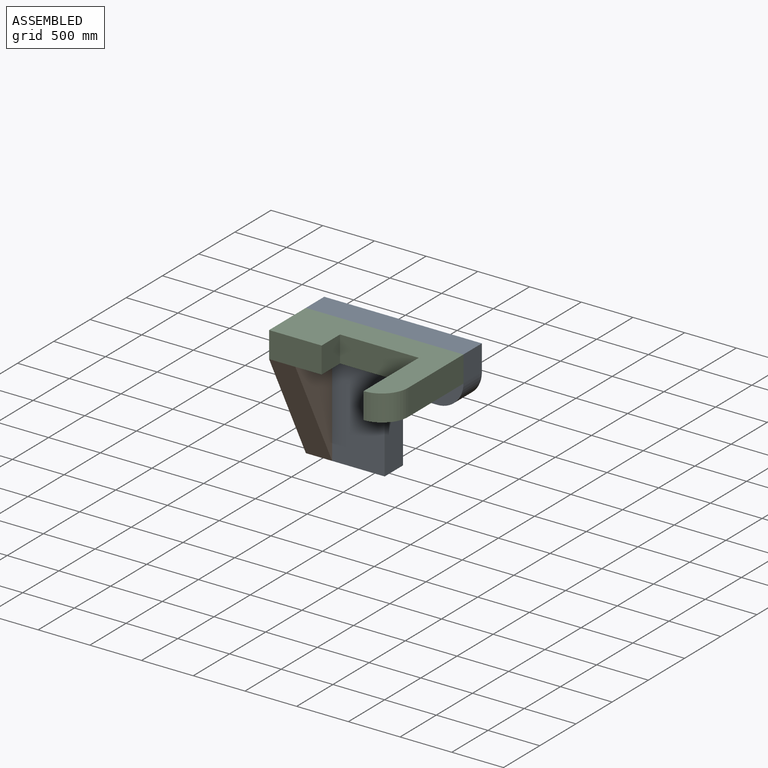
[diagram: assembled view]
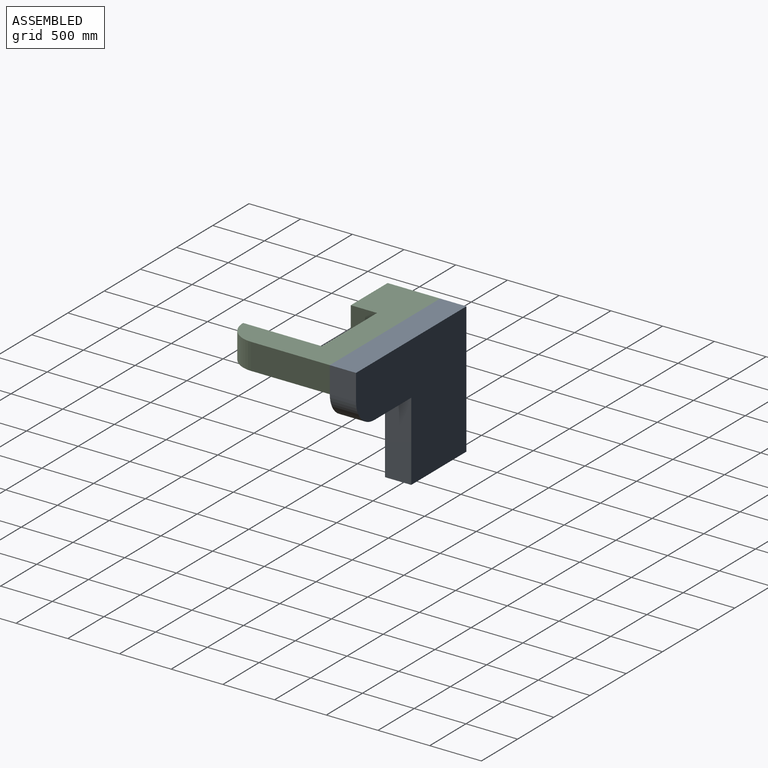
[diagram: assembled view, second angle]
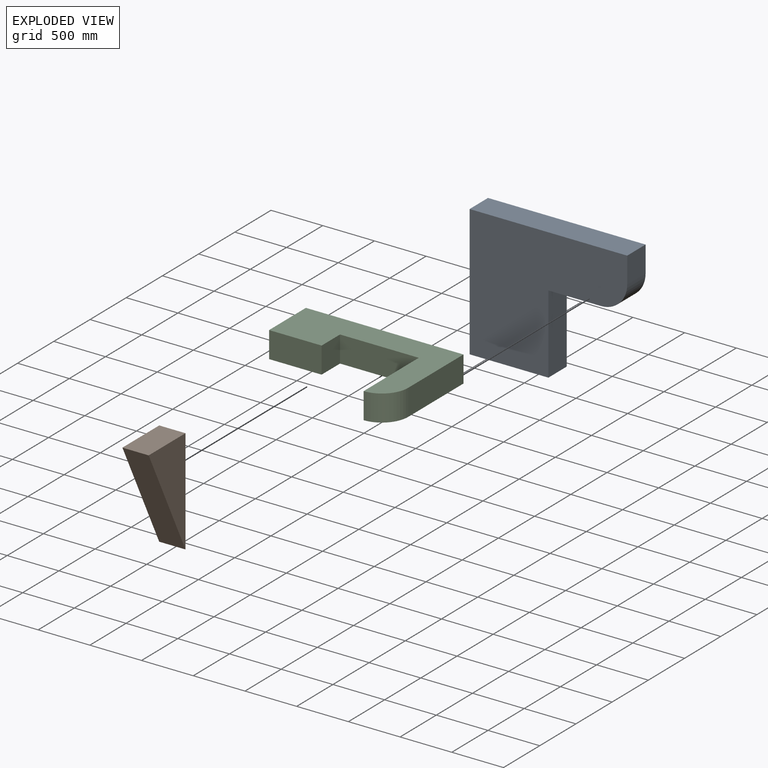
[diagram: exploded view]
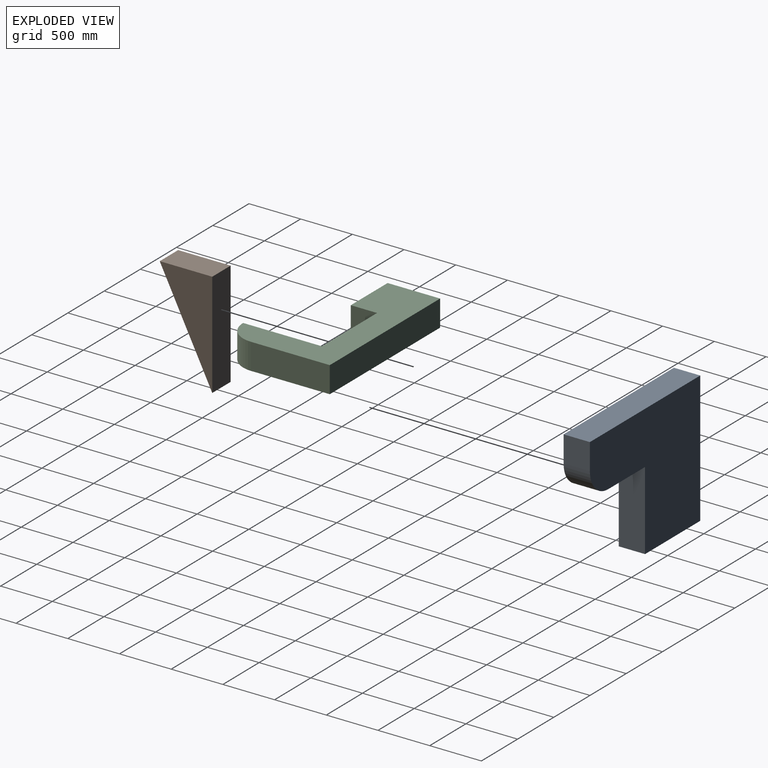
[diagram: exploded view, second angle]
ASSEMBLY  parts=3 mates=4
PART A: 9 faces, bbox 1524x254x1270 mm
  f0: plane 1270x254mm, normal (-1,0,0), area 322580mm2, adj f1,f5,f6,f7
  f1: plane 762x254mm, normal (0,0,-1), area 193548mm2, adj f0,f2,f6,f7
  f2: plane 762x254mm, normal (1,0,0), area 193548mm2, adj f1,f3,f6,f7
  f3: plane 508x254mm, normal (0,0,-1), area 129032mm2, adj f2,f6,f7,f8
  f4: plane 254x254mm, normal (1,0,0), area 64516mm2, adj f5,f6,f7,f8
  f5: plane 1524x254mm, normal (0,0,1), area 387096mm2, adj f0,f4,f6,f7
  f6: plane 1524x1270mm, normal (0,-1,0), area 1340990.7mm2, adj f0,f1,f2,f3,f4,f5,f8
  f7: plane 1524x1270mm, normal (0,1,0), area 1340990.7mm2, adj f0,f1,f2,f3,f4,f5,f8
  f8: cylinder r=254mm len=254mm, axis (0,1,0), area 101341.5mm2, adj f3,f4,f6,f7
PART B: 5 faces, bbox 1016x254x508 mm
  f0: plane 1016x508mm, normal (-0.45,0,0.89), area 288524.3mm2, adj f1,f2,f3,f4
  f1: plane 1016x254mm, normal (0,0,-1), area 258064mm2, adj f0,f2,f3,f4
  f2: plane 508x254mm, normal (1,0,0), area 129032mm2, adj f0,f1,f3,f4
  f3: plane 1016x508mm, normal (0,-1,0), area 258064mm2, adj f0,f1,f2
  f4: plane 1016x508mm, normal (0,1,0), area 258064mm2, adj f0,f1,f2
PART C: 10 faces, bbox 1524x254x1016 mm
  f0: plane 508x254mm, normal (-1,0,0), area 129032mm2, adj f1,f6,f7,f8
  f1: plane 1524x254mm, normal (0,0,-1), area 387096mm2, adj f0,f2,f7,f8
  f2: plane 762x254mm, normal (1,0,0), area 193548mm2, adj f1,f7,f8,f9
  f3: plane 762x254mm, normal (-1,0,0), area 193548mm2, adj f4,f7,f8,f9
  f4: plane 762x254mm, normal (0,0,1), area 193548mm2, adj f3,f5,f7,f8
  f5: plane 254x254mm, normal (1,0,0), area 64516mm2, adj f4,f6,f7,f8
  f6: plane 508x254mm, normal (0,0,1), area 129032mm2, adj f0,f5,f7,f8
  f7: plane 1524x1016mm, normal (0,-1,0), area 695830.7mm2, adj f0,f1,f2,f3,f4,f5,f6,f9
  f8: plane 1524x1016mm, normal (0,1,0), area 695830.7mm2, adj f0,f1,f2,f3,f4,f5,f6,f9
  f9: cylinder r=254mm len=254mm, axis (0,1,0), area 101341.5mm2, adj f2,f3,f7,f8
PLACE A t=(-618.72,621,-61.63)mm
PLACE B rot(axis=(0.58,-0.58,0.58),120deg) t=(-618.72,367,-61.63)mm
PLACE C rot(axis=(1,0,0),90deg) t=(-618.72,367,1208.37)mm
MATE planar B.f1 <-> A.f6  axis (0,1,0) through (-491.72,367,446.37)mm
MATE parallel C.f8 <-> A.f5  axis (0,0,1) through (905.28,367,1208.37)mm
MATE planar C.f1 <-> A.f6  axis (0,1,0) through (143.28,367,1081.37)mm
MATE parallel B.f4 <-> A.f0  axis (-1,0,0) through (-618.72,367,-61.63)mm
